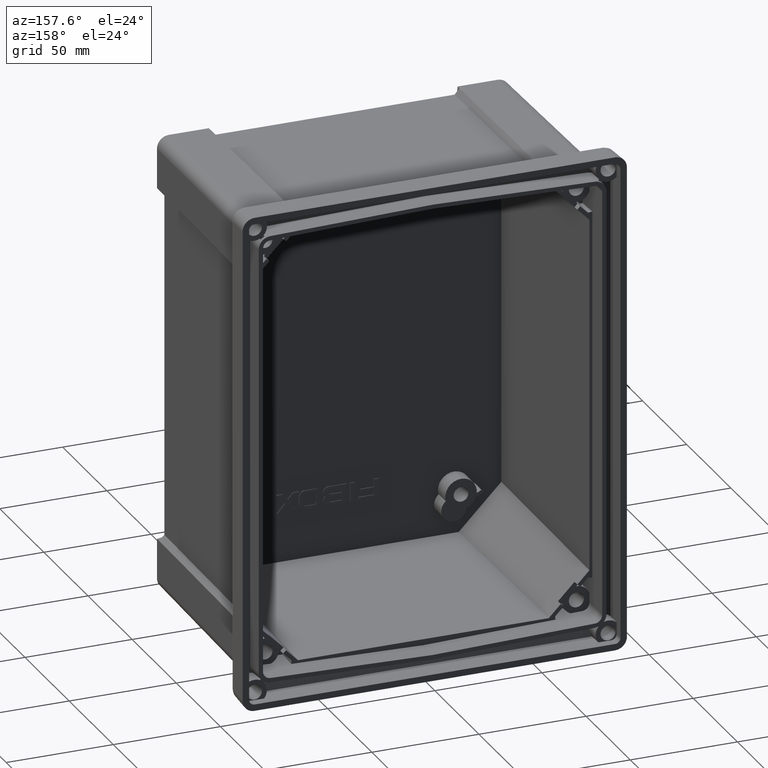
[diagram: clean part render]
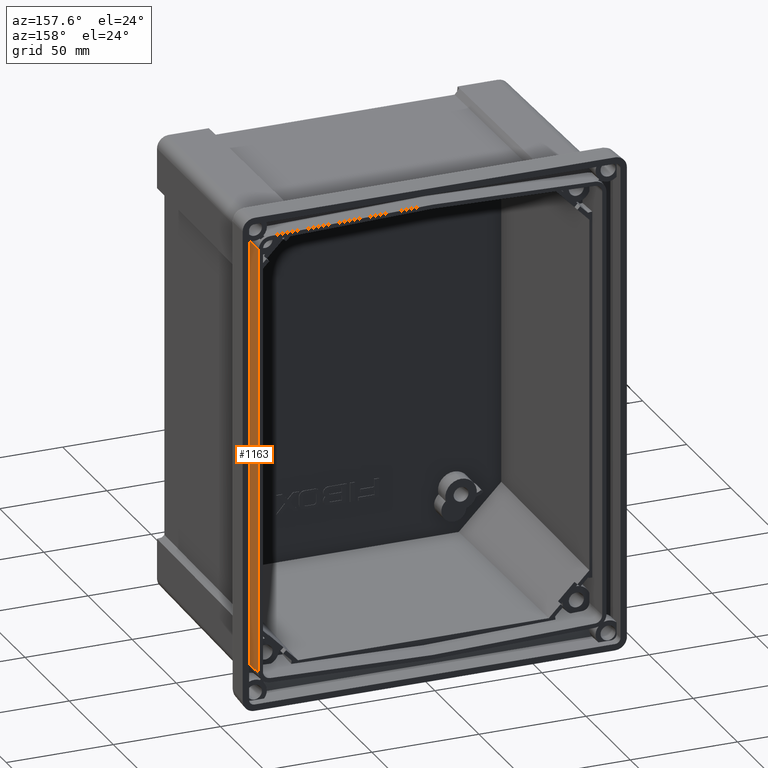
[diagram: same view with one face highlighted and labeled with its STEP entity id]
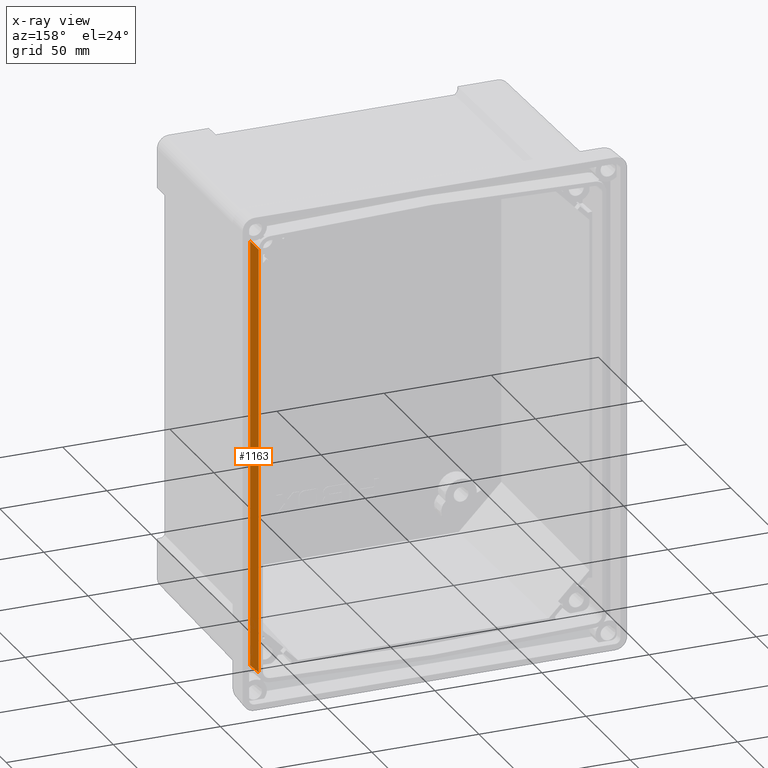
[diagram: x-ray of the same camera — body ghosted, the highlighted face saturated]
A machine part, auxiliary view. The second image highlights one B-rep face of the part: STEP entity #1163.
The next image is the same camera in x-ray: the body ghosted, the highlighted face saturated — about 0% of this face is hidden behind the body in this view.
In plain terms, the highlighted planar face has unit normal (0.9994, 0.0349, 0).
Its self-contained STEP definition (entity closure, byte-faithful):
#874 = CARTESIAN_POINT ( 'NONE',  ( 81.13698888069384900, -3.256241679310966300, 99.85243172527215400 ) ) ;
#1131 = FACE_OUTER_BOUND ( 'NONE', #14000, .T. ) ;
#1163 = ADVANCED_FACE ( 'NONE', ( #1131 ), #4615, .T. ) ;
#2670 = VERTEX_POINT ( 'NONE', #9372 ) ;
#3519 = CARTESIAN_POINT ( 'NONE',  ( 81.42674545880844100, -11.55378444059059200, -100.1347000867372100 ) ) ;
#3592 = DIRECTION ( 'NONE',  ( -0.03487934512674304600, 0.9988137613916394700, 0.03397795370846536100 ) ) ;
#4301 = EDGE_CURVE ( 'NONE', #13683, #13411, #11218, .T. ) ;
#4615 = PLANE ( 'NONE',  #8278 ) ;
#4644 = EDGE_CURVE ( 'NONE', #12857, #13683, #11585, .T. ) ;
#5234 = VECTOR ( 'NONE', #15784, 1000.000000000000000 ) ;
#5755 = DIRECTION ( 'NONE',  ( -0.03489949670250104600, 0.9993908270190956500, 0.0000000000000000000 ) ) ;
#7009 = LINE ( 'NONE', #874, #8369 ) ;
#7320 = ORIENTED_EDGE ( 'NONE', *, *, #10827, .T. ) ;
#7431 = CARTESIAN_POINT ( 'NONE',  ( 80.88243724877409600, 4.033163325923313300, -99.60445850403317500 ) ) ;
#8278 = AXIS2_PLACEMENT_3D ( 'NONE', #9517, #15595, #5755 ) ;
#8369 = VECTOR ( 'NONE', #12021, 1000.000000000000100 ) ;
#8678 = DIRECTION ( 'NONE',  ( -1.344095671459027500E-016, 0.0000000000000000000, 1.000000000000000000 ) ) ;
#9372 = CARTESIAN_POINT ( 'NONE',  ( 81.11058033933058200, -2.500000000000000000, 99.82670566325211300 ) ) ;
#9517 = CARTESIAN_POINT ( 'NONE',  ( 81.12804072407645600, -3.000000000000000000, 107.3940813366482600 ) ) ;
#10008 = CARTESIAN_POINT ( 'NONE',  ( 81.11058033933058200, -2.500000000000000000, 107.3940813366482600 ) ) ;
#10155 = ORIENTED_EDGE ( 'NONE', *, *, #4644, .T. ) ;
#10576 = CARTESIAN_POINT ( 'NONE',  ( 81.11058033933061000, -2.500000000000000000, -99.82670566325204200 ) ) ;
#10827 = EDGE_CURVE ( 'NONE', #13411, #2670, #13397, .T. ) ;
#11031 = VECTOR ( 'NONE', #3592, 1000.000000000000100 ) ;
#11218 = LINE ( 'NONE', #7431, #11031 ) ;
#11585 = LINE ( 'NONE', #11960, #5234 ) ;
#11960 = CARTESIAN_POINT ( 'NONE',  ( 81.42674545880841200, -11.55378444059059500, 107.3940813366482600 ) ) ;
#12021 = DIRECTION ( 'NONE',  ( 0.03487934512674303200, -0.9988137613916394700, 0.03397795370846536800 ) ) ;
#12611 = VECTOR ( 'NONE', #8678, 1000.000000000000000 ) ;
#12857 = VERTEX_POINT ( 'NONE', #15411 ) ;
#12946 = ORIENTED_EDGE ( 'NONE', *, *, #4301, .T. ) ;
#13039 = EDGE_CURVE ( 'NONE', #2670, #12857, #7009, .T. ) ;
#13397 = LINE ( 'NONE', #10008, #12611 ) ;
#13411 = VERTEX_POINT ( 'NONE', #10576 ) ;
#13683 = VERTEX_POINT ( 'NONE', #3519 ) ;
#14000 = EDGE_LOOP ( 'NONE', ( #10155, #12946, #7320, #15790 ) ) ;
#15411 = CARTESIAN_POINT ( 'NONE',  ( 81.42674545880841200, -11.55378444059059500, 100.1347000867372300 ) ) ;
#15595 = DIRECTION ( 'NONE',  ( 0.9993908270190957600, 0.03489949670250105200, 1.343276884692224400E-016 ) ) ;
#15784 = DIRECTION ( 'NONE',  ( 1.334192443006276900E-016, 2.835913582915372200E-017, -1.000000000000000000 ) ) ;
#15790 = ORIENTED_EDGE ( 'NONE', *, *, #13039, .T. ) ;